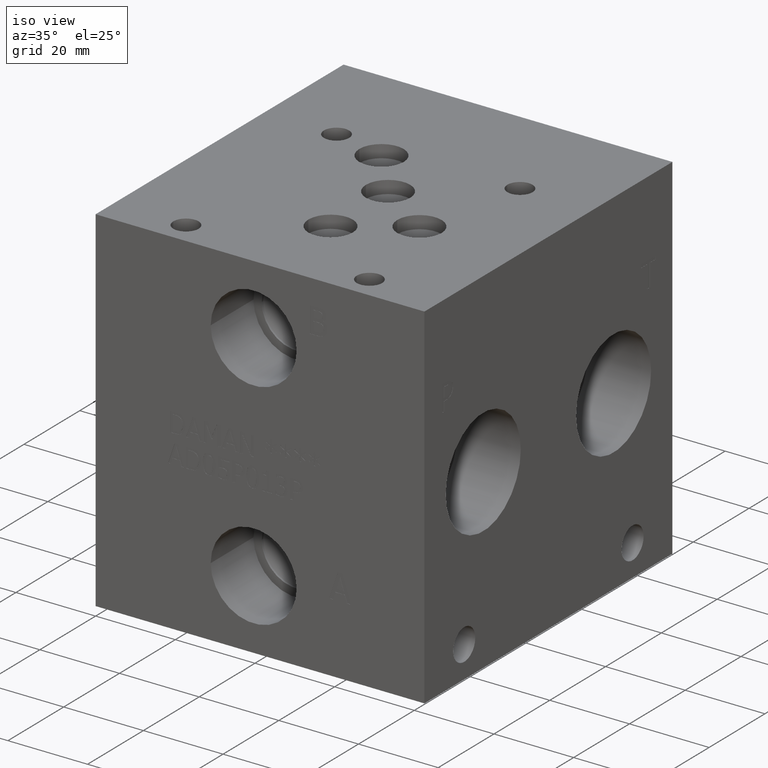
[diagram: clean part render]
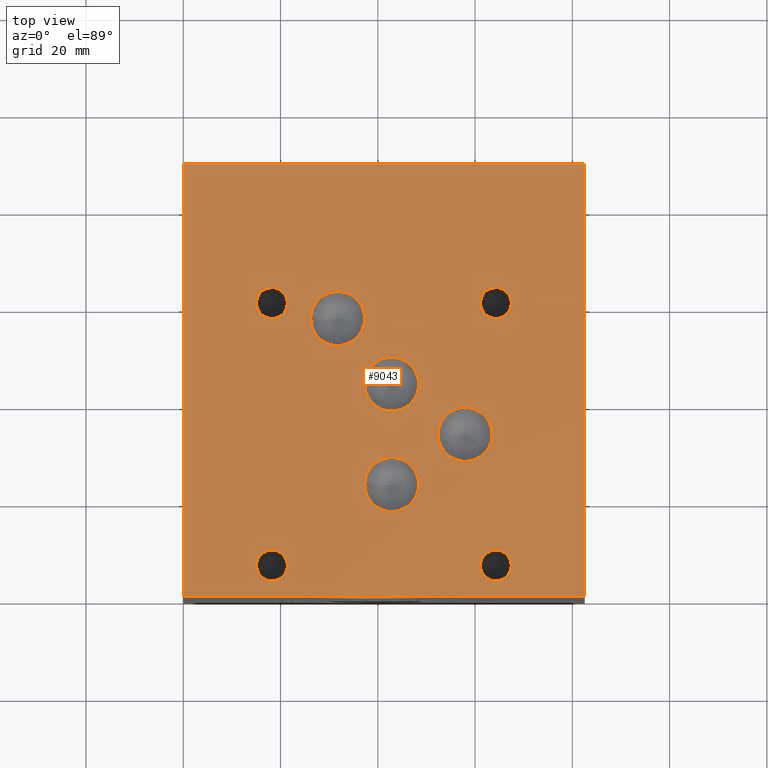
[diagram: tour spotlight — one face highlighted and labeled with its STEP entity id]
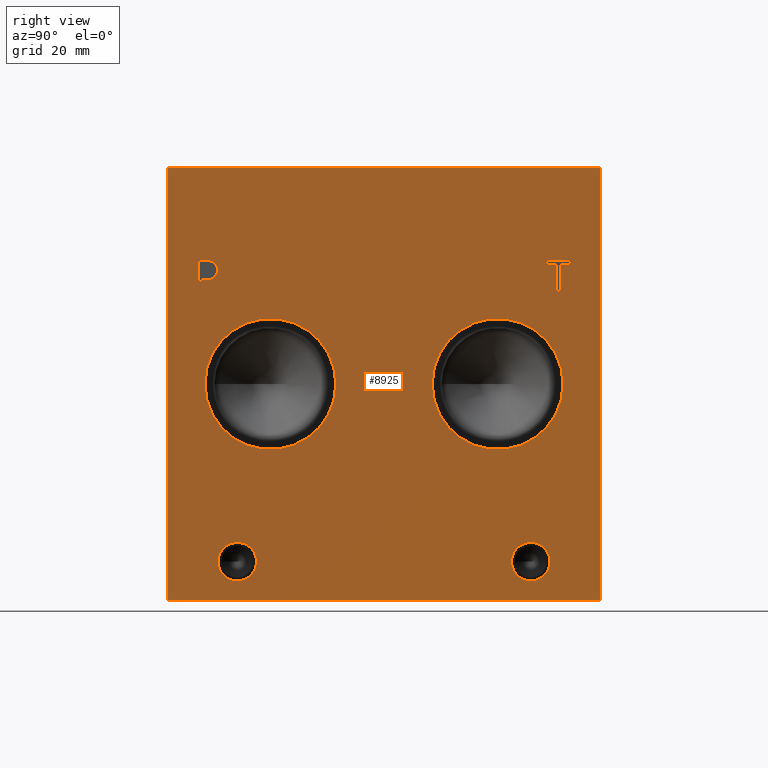
[diagram: tour spotlight — one face highlighted and labeled with its STEP entity id]
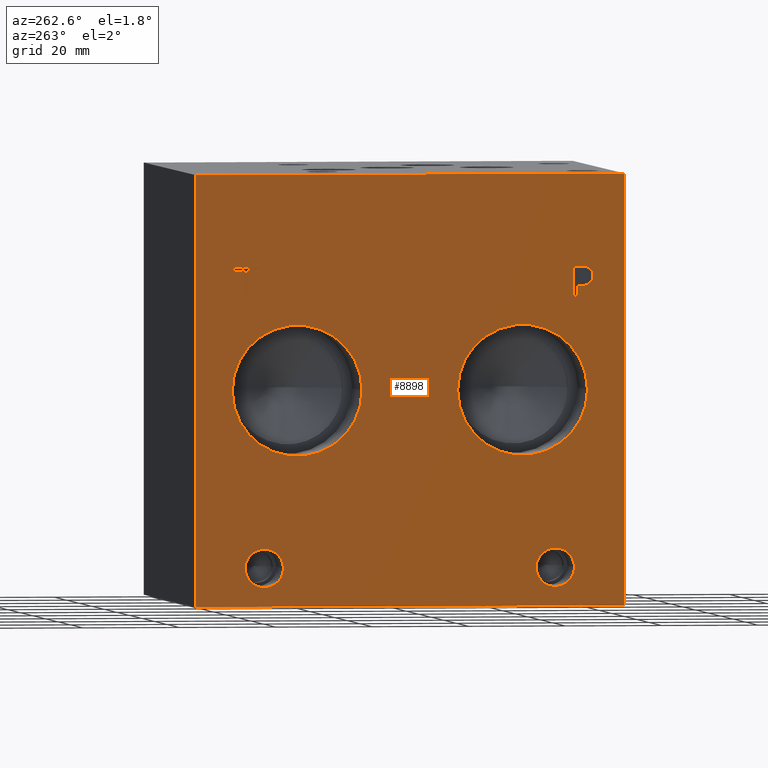
[diagram: tour spotlight — one face highlighted and labeled with its STEP entity id]
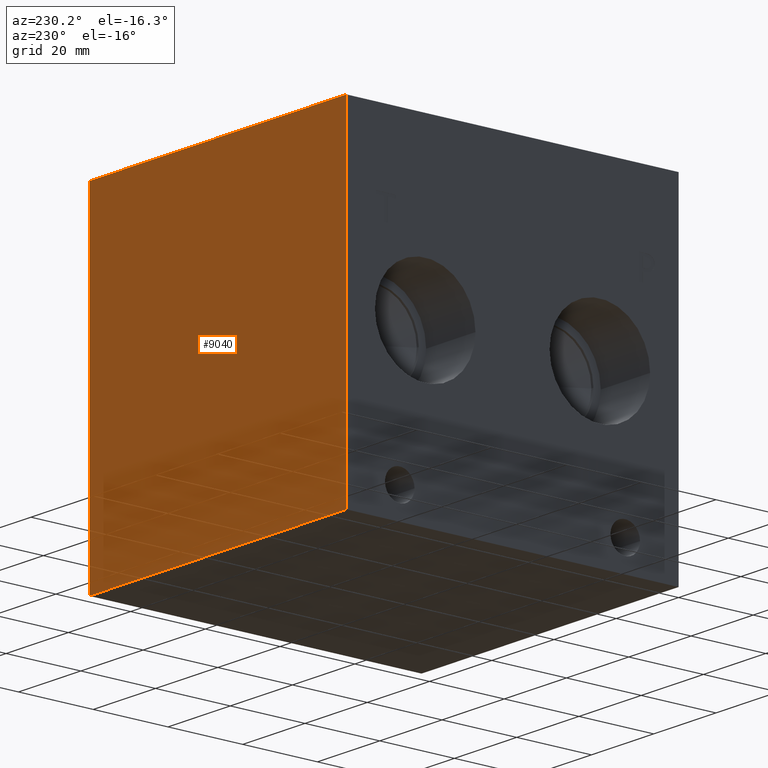
[diagram: tour spotlight — one face highlighted and labeled with its STEP entity id]
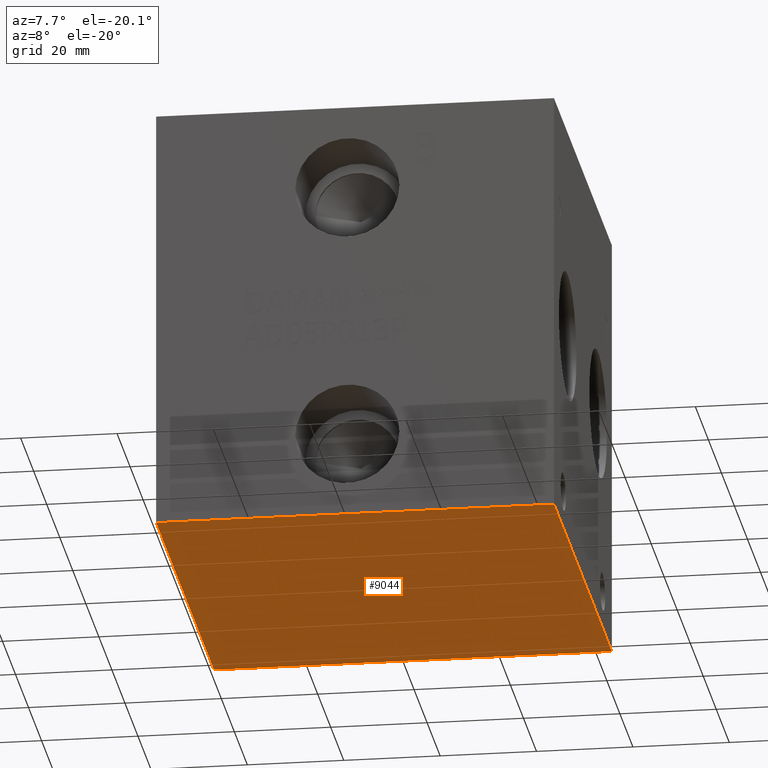
[diagram: tour spotlight — one face highlighted and labeled with its STEP entity id]
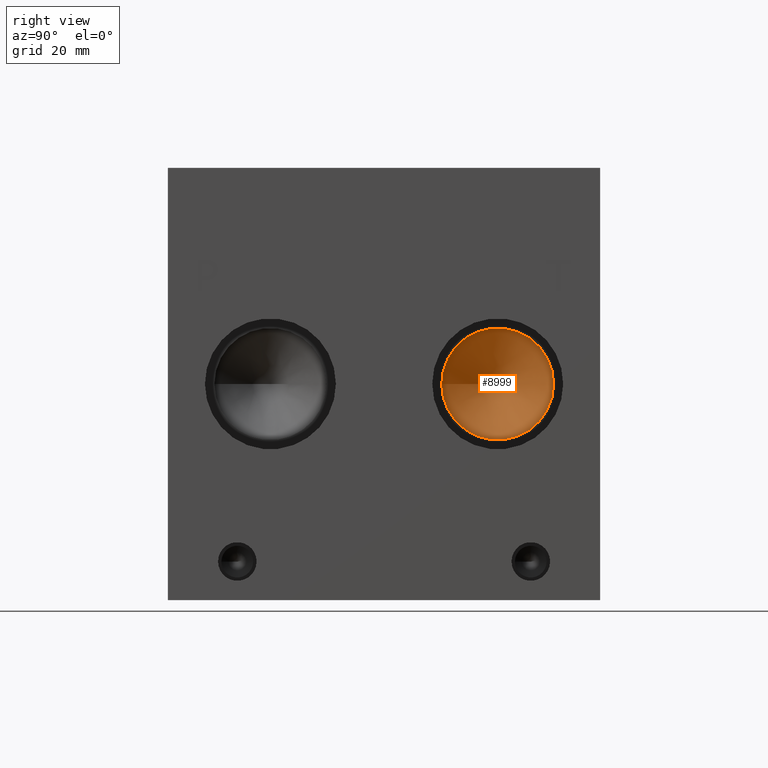
[diagram: tour spotlight — one face highlighted and labeled with its STEP entity id]
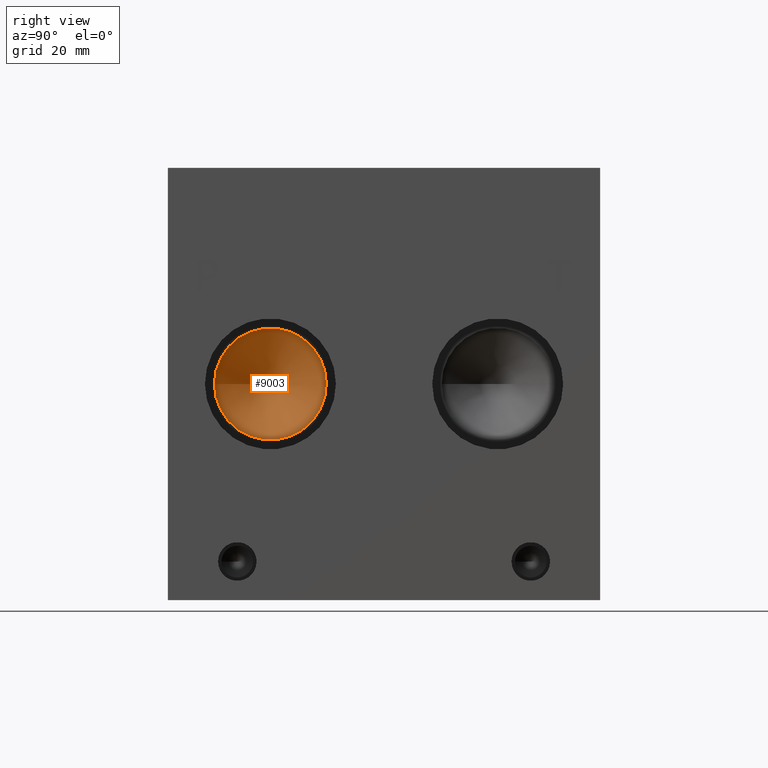
[diagram: tour spotlight — one face highlighted and labeled with its STEP entity id]
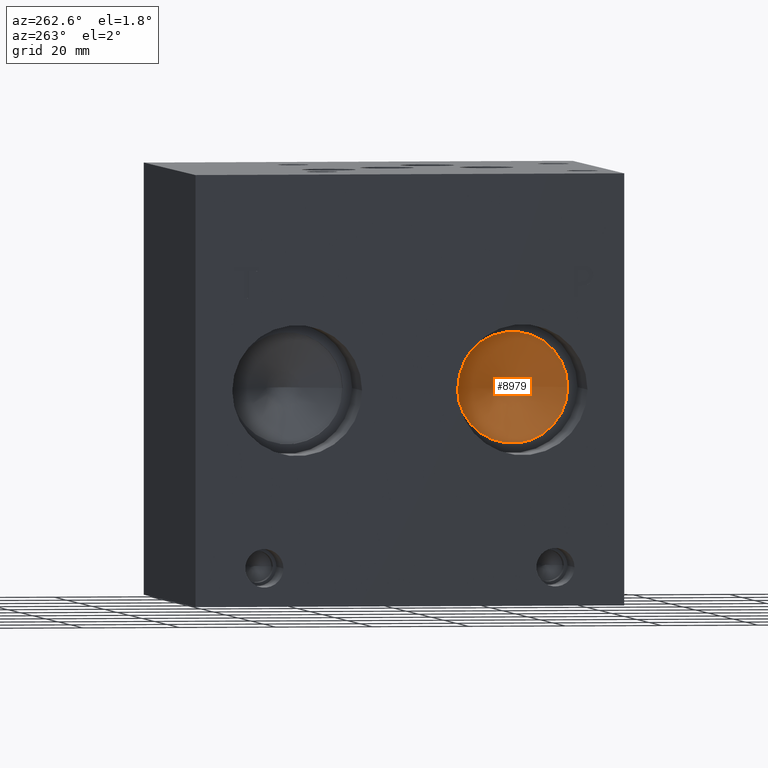
[diagram: tour spotlight — one face highlighted and labeled with its STEP entity id]
A machine part: a face-by-face anatomy tour. The part has 461 B-rep faces; the first image is the clean iso view, then the 8 largest visible faces are spotlighted one at a time (largest first), each with its STEP entity span.

Face 1 — top view, entity #9043. In plain terms, the highlighted planar face has unit normal (0, 0, 1).
Definition (entity closure, byte-faithful):
#136=CIRCLE('',#9445,5.55625);
#137=CIRCLE('',#9446,5.55625);
#140=CIRCLE('',#9451,5.5626);
#141=CIRCLE('',#9452,5.5626);
#144=CIRCLE('',#9457,5.5626);
#145=CIRCLE('',#9458,5.5626);
#148=CIRCLE('',#9463,5.5626);
#149=CIRCLE('',#9464,5.5626);
#155=CIRCLE('',#9473,3.175);
#156=CIRCLE('',#9474,3.175);
#162=CIRCLE('',#9484,3.175);
#163=CIRCLE('',#9485,3.175);
#169=CIRCLE('',#9495,3.175);
#170=CIRCLE('',#9496,3.175);
#176=CIRCLE('',#9506,3.175);
#177=CIRCLE('',#9507,3.175);
#240=FACE_BOUND('',#1523,.T.);
#241=FACE_BOUND('',#1524,.T.);
#242=FACE_BOUND('',#1525,.T.);
#243=FACE_BOUND('',#1526,.T.);
#244=FACE_BOUND('',#1527,.T.);
#245=FACE_BOUND('',#1528,.T.);
#246=FACE_BOUND('',#1529,.T.);
#247=FACE_BOUND('',#1530,.T.);
#538=PLANE('',#9513);
#999=FACE_OUTER_BOUND('',#1522,.T.);
#1522=EDGE_LOOP('',(#8063,#8064,#8065,#8066));
#1523=EDGE_LOOP('',(#8067,#8068));
#1524=EDGE_LOOP('',(#8069,#8070));
#1525=EDGE_LOOP('',(#8071,#8072));
#1526=EDGE_LOOP('',(#8073,#8074));
#1527=EDGE_LOOP('',(#8075,#8076));
#1528=EDGE_LOOP('',(#8077,#8078));
#1529=EDGE_LOOP('',(#8079,#8080));
#1530=EDGE_LOOP('',(#8081,#8082));
#1789=LINE('',#13216,#2672);
#2213=LINE('',#14392,#3096);
#2273=LINE('',#14665,#3156);
#2414=LINE('',#15397,#3297);
#2672=VECTOR('',#9910,10.);
#3096=VECTOR('',#10642,10.);
#3156=VECTOR('',#10756,10.);
#3297=VECTOR('',#11303,10.);
#3816=VERTEX_POINT('',#13213);
#3817=VERTEX_POINT('',#13215);
#4135=VERTEX_POINT('',#14391);
#4193=VERTEX_POINT('',#14663);
#4333=VERTEX_POINT('',#15262);
#4334=VERTEX_POINT('',#15263);
#4338=VERTEX_POINT('',#15275);
#4339=VERTEX_POINT('',#15276);
#4343=VERTEX_POINT('',#15288);
#4344=VERTEX_POINT('',#15289);
#4348=VERTEX_POINT('',#15301);
#4349=VERTEX_POINT('',#15302);
#4356=VERTEX_POINT('',#15321);
#4357=VERTEX_POINT('',#15322);
#4364=VERTEX_POINT('',#15343);
#4365=VERTEX_POINT('',#15344);
#4372=VERTEX_POINT('',#15365);
#4373=VERTEX_POINT('',#15366);
#4380=VERTEX_POINT('',#15387);
#4381=VERTEX_POINT('',#15388);
#4801=EDGE_CURVE('',#3817,#3816,#1789,.T.);
#5267=EDGE_CURVE('',#4135,#3817,#2213,.T.);
#5351=EDGE_CURVE('',#3816,#4193,#2273,.T.);
#5554=EDGE_CURVE('',#4333,#4334,#136,.T.);
#5555=EDGE_CURVE('',#4334,#4333,#137,.T.);
#5560=EDGE_CURVE('',#4338,#4339,#140,.T.);
#5561=EDGE_CURVE('',#4339,#4338,#141,.T.);
#5566=EDGE_CURVE('',#4343,#4344,#144,.T.);
#5567=EDGE_CURVE('',#4344,#4343,#145,.T.);
#5572=EDGE_CURVE('',#4348,#4349,#148,.T.);
#5573=EDGE_CURVE('',#4349,#4348,#149,.T.);
#5581=EDGE_CURVE('',#4356,#4357,#155,.T.);
#5582=EDGE_CURVE('',#4357,#4356,#156,.T.);
#5591=EDGE_CURVE('',#4364,#4365,#162,.T.);
#5592=EDGE_CURVE('',#4365,#4364,#163,.T.);
#5601=EDGE_CURVE('',#4372,#4373,#169,.T.);
#5602=EDGE_CURVE('',#4373,#4372,#170,.T.);
#5611=EDGE_CURVE('',#4380,#4381,#176,.T.);
#5612=EDGE_CURVE('',#4381,#4380,#177,.T.);
#5616=EDGE_CURVE('',#4193,#4135,#2414,.T.);
#8063=ORIENTED_EDGE('',*,*,#4801,.T.);
#8064=ORIENTED_EDGE('',*,*,#5351,.T.);
#8065=ORIENTED_EDGE('',*,*,#5616,.T.);
#8066=ORIENTED_EDGE('',*,*,#5267,.T.);
#8067=ORIENTED_EDGE('',*,*,#5554,.T.);
#8068=ORIENTED_EDGE('',*,*,#5555,.T.);
#8069=ORIENTED_EDGE('',*,*,#5560,.T.);
#8070=ORIENTED_EDGE('',*,*,#5561,.T.);
#8071=ORIENTED_EDGE('',*,*,#5566,.T.);
#8072=ORIENTED_EDGE('',*,*,#5567,.T.);
#8073=ORIENTED_EDGE('',*,*,#5572,.T.);
#8074=ORIENTED_EDGE('',*,*,#5573,.T.);
#8075=ORIENTED_EDGE('',*,*,#5581,.T.);
#8076=ORIENTED_EDGE('',*,*,#5582,.T.);
#8077=ORIENTED_EDGE('',*,*,#5591,.T.);
#8078=ORIENTED_EDGE('',*,*,#5592,.T.);
#8079=ORIENTED_EDGE('',*,*,#5601,.T.);
#8080=ORIENTED_EDGE('',*,*,#5602,.T.);
#8081=ORIENTED_EDGE('',*,*,#5611,.T.);
#8082=ORIENTED_EDGE('',*,*,#5612,.T.);
#9043=ADVANCED_FACE('',(#999,#240,#241,#242,#243,#244,#245,#246,#247),#538,
 .T.);
#9445=AXIS2_PLACEMENT_3D('',#15264,#11151,#11152);
#9446=AXIS2_PLACEMENT_3D('',#15265,#11153,#11154);
#9451=AXIS2_PLACEMENT_3D('',#15277,#11165,#11166);
#9452=AXIS2_PLACEMENT_3D('',#15278,#11167,#11168);
#9457=AXIS2_PLACEMENT_3D('',#15290,#11179,#11180);
#9458=AXIS2_PLACEMENT_3D('',#15291,#11181,#11182);
#9463=AXIS2_PLACEMENT_3D('',#15303,#11193,#11194);
#9464=AXIS2_PLACEMENT_3D('',#15304,#11195,#11196);
#9473=AXIS2_PLACEMENT_3D('',#15323,#11215,#11216);
#9474=AXIS2_PLACEMENT_3D('',#15324,#11217,#11218);
#9484=AXIS2_PLACEMENT_3D('',#15345,#11240,#11241);
#9485=AXIS2_PLACEMENT_3D('',#15346,#11242,#11243);
#9495=AXIS2_PLACEMENT_3D('',#15367,#11265,#11266);
#9496=AXIS2_PLACEMENT_3D('',#15368,#11267,#11268);
#9506=AXIS2_PLACEMENT_3D('',#15389,#11290,#11291);
#9507=AXIS2_PLACEMENT_3D('',#15390,#11292,#11293);
#9513=AXIS2_PLACEMENT_3D('',#15400,#11308,#11309);
#9910=DIRECTION('',(1.,0.,0.));
#10642=DIRECTION('',(0.,-1.,0.));
#10756=DIRECTION('',(0.,1.,0.));
#11151=DIRECTION('center_axis',(0.,0.,-1.));
#11152=DIRECTION('ref_axis',(1.,0.,0.));
#11153=DIRECTION('center_axis',(0.,0.,-1.));
#11154=DIRECTION('ref_axis',(1.,0.,0.));
#11165=DIRECTION('center_axis',(0.,0.,-1.));
#11166=DIRECTION('ref_axis',(1.,0.,0.));
#11167=DIRECTION('center_axis',(0.,0.,-1.));
#11168=DIRECTION('ref_axis',(1.,0.,0.));
#11179=DIRECTION('center_axis',(0.,0.,-1.));
#11180=DIRECTION('ref_axis',(1.,0.,0.));
#11181=DIRECTION('center_axis',(0.,0.,-1.));
#11182=DIRECTION('ref_axis',(1.,0.,0.));
#11193=DIRECTION('center_axis',(0.,0.,-1.));
#11194=DIRECTION('ref_axis',(1.,0.,0.));
#11195=DIRECTION('center_axis',(0.,0.,-1.));
#11196=DIRECTION('ref_axis',(1.,0.,0.));
#11215=DIRECTION('center_axis',(0.,0.,-1.));
#11216=DIRECTION('ref_axis',(1.,0.,0.));
#11217=DIRECTION('center_axis',(0.,0.,-1.));
#11218=DIRECTION('ref_axis',(1.,0.,0.));
#11240=DIRECTION('center_axis',(0.,0.,-1.));
#11241=DIRECTION('ref_axis',(1.,0.,0.));
#11242=DIRECTION('center_axis',(0.,0.,-1.));
#11243=DIRECTION('ref_axis',(1.,0.,0.));
#11265=DIRECTION('center_axis',(0.,0.,-1.));
#11266=DIRECTION('ref_axis',(1.,0.,0.));
#11267=DIRECTION('center_axis',(0.,0.,-1.));
#11268=DIRECTION('ref_axis',(1.,0.,0.));
#11290=DIRECTION('center_axis',(0.,0.,-1.));
#11291=DIRECTION('ref_axis',(1.,0.,0.));
#11292=DIRECTION('center_axis',(0.,0.,-1.));
#11293=DIRECTION('ref_axis',(1.,0.,0.));
#11303=DIRECTION('',(-1.,0.,0.));
#11308=DIRECTION('center_axis',(0.,0.,1.));
#11309=DIRECTION('ref_axis',(1.,0.,0.));
#13213=CARTESIAN_POINT('',(82.55,0.,88.9));
#13215=CARTESIAN_POINT('',(0.,0.,88.9));
#13216=CARTESIAN_POINT('',(0.,0.,88.9));
#14391=CARTESIAN_POINT('',(0.,88.9,88.9));
#14392=CARTESIAN_POINT('',(0.,88.9,88.9));
#14663=CARTESIAN_POINT('',(82.55,88.9,88.9));
#14665=CARTESIAN_POINT('',(82.55,0.,88.9));
#15262=CARTESIAN_POINT('',(48.41875,43.64228,88.9));
#15263=CARTESIAN_POINT('',(37.30625,43.64228,88.9));
#15264=CARTESIAN_POINT('Origin',(42.8625,43.64228,88.9));
#15265=CARTESIAN_POINT('Origin',(42.8625,43.64228,88.9));
#15275=CARTESIAN_POINT('',(37.3126,57.15,88.9));
#15276=CARTESIAN_POINT('',(26.1874,57.15,88.9));
#15277=CARTESIAN_POINT('Origin',(31.75,57.15,88.9));
#15278=CARTESIAN_POINT('Origin',(31.75,57.15,88.9));
#15288=CARTESIAN_POINT('',(63.5254,33.3248,88.9));
#15289=CARTESIAN_POINT('',(52.4002,33.3248,88.9));
#15290=CARTESIAN_POINT('Origin',(57.9628,33.3248,88.9));
#15291=CARTESIAN_POINT('Origin',(57.9628,33.3248,88.9));
#15301=CARTESIAN_POINT('',(48.43018,23.00732,88.9));
#15302=CARTESIAN_POINT('',(37.30498,23.00732,88.9));
#15303=CARTESIAN_POINT('Origin',(42.86758,23.00732,88.9));
#15304=CARTESIAN_POINT('Origin',(42.86758,23.00732,88.9));
#15321=CARTESIAN_POINT('',(67.4624,6.3627,88.9));
#15322=CARTESIAN_POINT('',(61.1124,6.3627,88.9));
#15323=CARTESIAN_POINT('Origin',(64.2874,6.3627,88.9));
#15324=CARTESIAN_POINT('Origin',(64.2874,6.3627,88.9));
#15343=CARTESIAN_POINT('',(21.4122,60.325,88.9));
#15344=CARTESIAN_POINT('',(15.0622,60.325,88.9));
#15345=CARTESIAN_POINT('Origin',(18.2372,60.325,88.9));
#15346=CARTESIAN_POINT('Origin',(18.2372,60.325,88.9));
#15365=CARTESIAN_POINT('',(67.4624,60.325,88.9));
#15366=CARTESIAN_POINT('',(61.1124,60.325,88.9));
#15367=CARTESIAN_POINT('Origin',(64.2874,60.325,88.9));
#15368=CARTESIAN_POINT('Origin',(64.2874,60.325,88.9));
#15387=CARTESIAN_POINT('',(21.4122,6.35,88.9));
#15388=CARTESIAN_POINT('',(15.0622,6.35,88.9));
#15389=CARTESIAN_POINT('Origin',(18.2372,6.35,88.9));
#15390=CARTESIAN_POINT('Origin',(18.2372,6.35,88.9));
#15397=CARTESIAN_POINT('',(82.55,88.9,88.9));
#15400=CARTESIAN_POINT('Origin',(41.275,44.45,88.9));

Face 2 — right view, entity #8925. In plain terms, the highlighted planar face has unit normal (1, 0, 0).
Definition (entity closure, byte-faithful):
#76=CIRCLE('',#9308,13.462);
#77=CIRCLE('',#9309,13.462);
#78=CIRCLE('',#9310,13.462);
#79=CIRCLE('',#9311,13.462);
#80=CIRCLE('',#9312,3.9624);
#81=CIRCLE('',#9313,3.9624);
#82=CIRCLE('',#9314,3.9624);
#83=CIRCLE('',#9315,3.9624);
#217=FACE_BOUND('',#1382,.T.);
#218=FACE_BOUND('',#1383,.T.);
#219=FACE_BOUND('',#1384,.T.);
#220=FACE_BOUND('',#1385,.T.);
#221=FACE_BOUND('',#1386,.T.);
#222=FACE_BOUND('',#1387,.T.);
#484=PLANE('',#9307);
#881=FACE_OUTER_BOUND('',#1381,.T.);
#1381=EDGE_LOOP('',(#7489,#7490,#7491,#7492));
#1382=EDGE_LOOP('',(#7493,#7494));
#1383=EDGE_LOOP('',(#7495,#7496));
#1384=EDGE_LOOP('',(#7497,#7498));
#1385=EDGE_LOOP('',(#7499,#7500));
#1386=EDGE_LOOP('',(#7501,#7502,#7503,#7504,#7505,#7506,#7507,#7508));
#1387=EDGE_LOOP('',(#7509,#7510,#7511,#7512,#7513,#7514,#7515,#7516,#7517));
#1788=LINE('',#13214,#2671);
#2255=LINE('',#14596,#3138);
#2258=LINE('',#14602,#3141);
#2261=LINE('',#14608,#3144);
#2264=LINE('',#14614,#3147);
#2267=LINE('',#14620,#3150);
#2271=LINE('',#14662,#3154);
#2272=LINE('',#14664,#3155);
#2273=LINE('',#14665,#3156);
#2274=LINE('',#14684,#3157);
#2275=LINE('',#14686,#3158);
#2276=LINE('',#14688,#3159);
#2277=LINE('',#14690,#3160);
#2278=LINE('',#14692,#3161);
#2279=LINE('',#14694,#3162);
#2280=LINE('',#14696,#3163);
#2281=LINE('',#14697,#3164);
#2671=VECTOR('',#9909,10.);
#3138=VECTOR('',#10726,10.);
#3141=VECTOR('',#10731,10.);
#3144=VECTOR('',#10736,10.);
#3147=VECTOR('',#10741,10.);
#3150=VECTOR('',#10746,10.);
#3154=VECTOR('',#10754,10.);
#3155=VECTOR('',#10755,10.);
#3156=VECTOR('',#10756,10.);
#3157=VECTOR('',#10773,10.);
#3158=VECTOR('',#10774,10.);
#3159=VECTOR('',#10775,10.);
#3160=VECTOR('',#10776,10.);
#3161=VECTOR('',#10777,10.);
#3162=VECTOR('',#10778,10.);
#3163=VECTOR('',#10779,10.);
#3164=VECTOR('',#10780,10.);
#3506=B_SPLINE_CURVE_WITH_KNOTS('',2,(#14563,#14564,#14565,#14566),
 .UNSPECIFIED.,.F.,.F.,(3,1,3),(0.,1.,2.),.UNSPECIFIED.);
#3508=B_SPLINE_CURVE_WITH_KNOTS('',2,(#14584,#14585,#14586,#14587),
 .UNSPECIFIED.,.F.,.F.,(3,1,3),(0.,1.,2.),.UNSPECIFIED.);
#3510=B_SPLINE_CURVE_WITH_KNOTS('',2,(#14633,#14634,#14635,#14636),
 .UNSPECIFIED.,.F.,.F.,(3,1,3),(0.,1.,2.),.UNSPECIFIED.);
#3512=B_SPLINE_CURVE_WITH_KNOTS('',2,(#14651,#14652,#14653,#14654),
 .UNSPECIFIED.,.F.,.F.,(3,1,3),(0.,1.,2.),.UNSPECIFIED.);
#3815=VERTEX_POINT('',#13211);
#3816=VERTEX_POINT('',#13213);
#4174=VERTEX_POINT('',#14561);
#4175=VERTEX_POINT('',#14562);
#4178=VERTEX_POINT('',#14583);
#4180=VERTEX_POINT('',#14595);
#4182=VERTEX_POINT('',#14601);
#4184=VERTEX_POINT('',#14607);
#4186=VERTEX_POINT('',#14613);
#4188=VERTEX_POINT('',#14619);
#4190=VERTEX_POINT('',#14632);
#4192=VERTEX_POINT('',#14661);
#4193=VERTEX_POINT('',#14663);
#4194=VERTEX_POINT('',#14666);
#4195=VERTEX_POINT('',#14667);
#4196=VERTEX_POINT('',#14670);
#4197=VERTEX_POINT('',#14671);
#4198=VERTEX_POINT('',#14674);
#4199=VERTEX_POINT('',#14675);
#4200=VERTEX_POINT('',#14678);
#4201=VERTEX_POINT('',#14679);
#4202=VERTEX_POINT('',#14682);
#4203=VERTEX_POINT('',#14683);
#4204=VERTEX_POINT('',#14685);
#4205=VERTEX_POINT('',#14687);
#4206=VERTEX_POINT('',#14689);
#4207=VERTEX_POINT('',#14691);
#4208=VERTEX_POINT('',#14693);
#4209=VERTEX_POINT('',#14695);
#4800=EDGE_CURVE('',#3815,#3816,#1788,.T.);
#5322=EDGE_CURVE('',#4174,#4175,#3506,.T.);
#5326=EDGE_CURVE('',#4178,#4174,#3508,.T.);
#5329=EDGE_CURVE('',#4180,#4178,#2255,.T.);
#5332=EDGE_CURVE('',#4182,#4180,#2258,.T.);
#5335=EDGE_CURVE('',#4184,#4182,#2261,.T.);
#5338=EDGE_CURVE('',#4186,#4184,#2264,.T.);
#5341=EDGE_CURVE('',#4188,#4186,#2267,.T.);
#5344=EDGE_CURVE('',#4190,#4188,#3510,.T.);
#5347=EDGE_CURVE('',#4175,#4190,#3512,.T.);
#5349=EDGE_CURVE('',#3815,#4192,#2271,.T.);
#5350=EDGE_CURVE('',#4192,#4193,#2272,.T.);
#5351=EDGE_CURVE('',#3816,#4193,#2273,.T.);
#5352=EDGE_CURVE('',#4194,#4195,#76,.T.);
#5353=EDGE_CURVE('',#4195,#4194,#77,.T.);
#5354=EDGE_CURVE('',#4196,#4197,#78,.T.);
#5355=EDGE_CURVE('',#4197,#4196,#79,.T.);
#5356=EDGE_CURVE('',#4198,#4199,#80,.T.);
#5357=EDGE_CURVE('',#4199,#4198,#81,.T.);
#5358=EDGE_CURVE('',#4200,#4201,#82,.T.);
#5359=EDGE_CURVE('',#4201,#4200,#83,.T.);
#5360=EDGE_CURVE('',#4202,#4203,#2274,.T.);
#5361=EDGE_CURVE('',#4203,#4204,#2275,.T.);
#5362=EDGE_CURVE('',#4204,#4205,#2276,.T.);
#5363=EDGE_CURVE('',#4205,#4206,#2277,.T.);
#5364=EDGE_CURVE('',#4206,#4207,#2278,.T.);
#5365=EDGE_CURVE('',#4207,#4208,#2279,.T.);
#5366=EDGE_CURVE('',#4208,#4209,#2280,.T.);
#5367=EDGE_CURVE('',#4209,#4202,#2281,.T.);
#7489=ORIENTED_EDGE('',*,*,#5349,.T.);
#7490=ORIENTED_EDGE('',*,*,#5350,.T.);
#7491=ORIENTED_EDGE('',*,*,#5351,.F.);
#7492=ORIENTED_EDGE('',*,*,#4800,.F.);
#7493=ORIENTED_EDGE('',*,*,#5352,.T.);
#7494=ORIENTED_EDGE('',*,*,#5353,.T.);
#7495=ORIENTED_EDGE('',*,*,#5354,.T.);
#7496=ORIENTED_EDGE('',*,*,#5355,.T.);
#7497=ORIENTED_EDGE('',*,*,#5356,.T.);
#7498=ORIENTED_EDGE('',*,*,#5357,.T.);
#7499=ORIENTED_EDGE('',*,*,#5358,.T.);
#7500=ORIENTED_EDGE('',*,*,#5359,.T.);
#7501=ORIENTED_EDGE('',*,*,#5360,.T.);
#7502=ORIENTED_EDGE('',*,*,#5361,.T.);
#7503=ORIENTED_EDGE('',*,*,#5362,.T.);
#7504=ORIENTED_EDGE('',*,*,#5363,.T.);
#7505=ORIENTED_EDGE('',*,*,#5364,.T.);
#7506=ORIENTED_EDGE('',*,*,#5365,.T.);
#7507=ORIENTED_EDGE('',*,*,#5366,.T.);
#7508=ORIENTED_EDGE('',*,*,#5367,.T.);
#7509=ORIENTED_EDGE('',*,*,#5322,.T.);
#7510=ORIENTED_EDGE('',*,*,#5347,.T.);
#7511=ORIENTED_EDGE('',*,*,#5344,.T.);
#7512=ORIENTED_EDGE('',*,*,#5341,.T.);
#7513=ORIENTED_EDGE('',*,*,#5338,.T.);
#7514=ORIENTED_EDGE('',*,*,#5335,.T.);
#7515=ORIENTED_EDGE('',*,*,#5332,.T.);
#7516=ORIENTED_EDGE('',*,*,#5329,.T.);
#7517=ORIENTED_EDGE('',*,*,#5326,.T.);
#8925=ADVANCED_FACE('',(#881,#217,#218,#219,#220,#221,#222),#484,.T.);
#9307=AXIS2_PLACEMENT_3D('',#14660,#10752,#10753);
#9308=AXIS2_PLACEMENT_3D('',#14668,#10757,#10758);
#9309=AXIS2_PLACEMENT_3D('',#14669,#10759,#10760);
#9310=AXIS2_PLACEMENT_3D('',#14672,#10761,#10762);
#9311=AXIS2_PLACEMENT_3D('',#14673,#10763,#10764);
#9312=AXIS2_PLACEMENT_3D('',#14676,#10765,#10766);
#9313=AXIS2_PLACEMENT_3D('',#14677,#10767,#10768);
#9314=AXIS2_PLACEMENT_3D('',#14680,#10769,#10770);
#9315=AXIS2_PLACEMENT_3D('',#14681,#10771,#10772);
#9909=DIRECTION('',(0.,0.,1.));
#10726=DIRECTION('',(0.,1.,0.));
#10731=DIRECTION('',(0.,0.,1.));
#10736=DIRECTION('',(0.,-1.,0.));
#10741=DIRECTION('',(0.,0.,-1.));
#10746=DIRECTION('',(0.,-1.,0.));
#10752=DIRECTION('center_axis',(1.,0.,0.));
#10753=DIRECTION('ref_axis',(0.,1.,0.));
#10754=DIRECTION('',(0.,1.,0.));
#10755=DIRECTION('',(0.,0.,1.));
#10756=DIRECTION('',(0.,1.,0.));
#10757=DIRECTION('center_axis',(-1.,0.,0.));
#10758=DIRECTION('ref_axis',(0.,1.,0.));
#10759=DIRECTION('center_axis',(-1.,0.,0.));
#10760=DIRECTION('ref_axis',(0.,1.,0.));
#10761=DIRECTION('center_axis',(-1.,0.,0.));
#10762=DIRECTION('ref_axis',(0.,1.,0.));
#10763=DIRECTION('center_axis',(-1.,0.,0.));
#10764=DIRECTION('ref_axis',(0.,1.,0.));
#10765=DIRECTION('center_axis',(-1.,0.,0.));
#10766=DIRECTION('ref_axis',(0.,1.,0.));
#10767=DIRECTION('center_axis',(-1.,0.,0.));
#10768=DIRECTION('ref_axis',(0.,1.,0.));
#10769=DIRECTION('center_axis',(-1.,0.,0.));
#10770=DIRECTION('ref_axis',(0.,1.,0.));
#10771=DIRECTION('center_axis',(-1.,0.,0.));
#10772=DIRECTION('ref_axis',(0.,1.,0.));
#10773=DIRECTION('',(0.,-1.,0.));
#10774=DIRECTION('',(0.,0.,1.));
#10775=DIRECTION('',(0.,-1.,0.));
#10776=DIRECTION('',(0.,0.,1.));
#10777=DIRECTION('',(0.,1.,0.));
#10778=DIRECTION('',(0.,0.,-1.));
#10779=DIRECTION('',(0.,-1.,0.));
#10780=DIRECTION('',(0.,0.,-1.));
#13211=CARTESIAN_POINT('',(82.55,0.,0.));
#13213=CARTESIAN_POINT('',(82.55,0.,88.9));
#13214=CARTESIAN_POINT('',(82.55,0.,0.));
#14561=CARTESIAN_POINT('',(82.55,9.45681720235939,69.4537681439707));
#14562=CARTESIAN_POINT('',(82.55,10.213259654532,67.935737372604));
#14563=CARTESIAN_POINT('Ctrl Pts',(82.55,9.45681720235939,69.4537681439707));
#14564=CARTESIAN_POINT('Ctrl Pts',(82.55,9.81188202684857,69.2119123939564));
#14565=CARTESIAN_POINT('Ctrl Pts',(82.55,10.213259654532,68.4657616758269));
#14566=CARTESIAN_POINT('Ctrl Pts',(82.55,10.213259654532,67.935737372604));
#14583=CARTESIAN_POINT('',(82.55,7.7947021543883,69.8499999046326));
#14584=CARTESIAN_POINT('Ctrl Pts',(82.55,7.7947021543883,69.8499999046326));
#14585=CARTESIAN_POINT('Ctrl Pts',(82.55,8.36074752676236,69.8499999046326));
#14586=CARTESIAN_POINT('Ctrl Pts',(82.55,9.15321104808603,69.6647486918556));
#14587=CARTESIAN_POINT('Ctrl Pts',(82.55,9.45681720235939,69.4537681439707));
#14595=CARTESIAN_POINT('',(82.55,6.19948337769779,69.8499999046326));
#14596=CARTESIAN_POINT('',(82.55,3.09974168884889,69.8499999046326));
#14601=CARTESIAN_POINT('',(82.55,6.19948337769779,63.5));
#14602=CARTESIAN_POINT('',(82.55,6.19948337769779,31.75));
#14607=CARTESIAN_POINT('',(82.55,7.04340556923729,63.5));
#14608=CARTESIAN_POINT('',(82.55,3.52170278461864,63.5));
#14613=CARTESIAN_POINT('',(82.55,7.04340556923729,65.8670988299279));
#14614=CARTESIAN_POINT('',(82.55,7.04340556923729,32.9335494149639));
#14619=CARTESIAN_POINT('',(82.55,7.75868108523723,65.8670988299279));
#14620=CARTESIAN_POINT('',(82.55,3.87934054261861,65.8670988299279));
#14632=CARTESIAN_POINT('',(82.55,9.6575060162011,66.5257698086904));
#14633=CARTESIAN_POINT('Ctrl Pts',(82.55,9.6575060162011,66.5257698086904));
#14634=CARTESIAN_POINT('Ctrl Pts',(82.55,9.32817052681983,66.2015801863307));
#14635=CARTESIAN_POINT('Ctrl Pts',(82.55,8.43793553208609,65.8670988299279));
#14636=CARTESIAN_POINT('Ctrl Pts',(82.55,7.75868108523723,65.8670988299279));
#14651=CARTESIAN_POINT('Ctrl Pts',(82.55,10.213259654532,67.935737372604));
#14652=CARTESIAN_POINT('Ctrl Pts',(82.55,10.213259654532,67.5240680108774));
#14653=CARTESIAN_POINT('Ctrl Pts',(82.55,9.9199452343018,66.7830631597695));
#14654=CARTESIAN_POINT('Ctrl Pts',(82.55,9.6575060162011,66.5257698086904));
#14660=CARTESIAN_POINT('Origin',(82.55,0.,0.));
#14661=CARTESIAN_POINT('',(82.55,88.9,0.));
#14662=CARTESIAN_POINT('',(82.55,0.,0.));
#14663=CARTESIAN_POINT('',(82.55,88.9,88.9));
#14664=CARTESIAN_POINT('',(82.55,88.9,0.));
#14665=CARTESIAN_POINT('',(82.55,0.,88.9));
#14666=CARTESIAN_POINT('',(82.55,34.544,44.45));
#14667=CARTESIAN_POINT('',(82.55,7.62,44.45));
#14668=CARTESIAN_POINT('Origin',(82.55,21.082,44.45));
#14669=CARTESIAN_POINT('Origin',(82.55,21.082,44.45));
#14670=CARTESIAN_POINT('',(82.55,81.28,44.45));
#14671=CARTESIAN_POINT('',(82.55,54.356,44.45));
#14672=CARTESIAN_POINT('Origin',(82.55,67.818,44.45));
#14673=CARTESIAN_POINT('Origin',(82.55,67.818,44.45));
#14674=CARTESIAN_POINT('',(82.55,78.5876,7.9248));
#14675=CARTESIAN_POINT('',(82.55,70.6628,7.9248));
#14676=CARTESIAN_POINT('Origin',(82.55,74.6252,7.9248));
#14677=CARTESIAN_POINT('Origin',(82.55,74.6252,7.9248));
#14678=CARTESIAN_POINT('',(82.55,18.2372,7.9248));
#14679=CARTESIAN_POINT('',(82.55,10.3124,7.9248));
#14680=CARTESIAN_POINT('Origin',(82.55,14.2748,7.9248));
#14681=CARTESIAN_POINT('Origin',(82.55,14.2748,7.9248));
#14682=CARTESIAN_POINT('',(82.55,80.756665271453,63.5));
#14683=CARTESIAN_POINT('',(82.55,79.9127430799135,63.5));
#14684=CARTESIAN_POINT('',(82.55,40.3783326357265,63.5));
#14685=CARTESIAN_POINT('',(82.55,79.9127430799135,69.0987033194816));
#14686=CARTESIAN_POINT('',(82.55,79.9127430799135,31.75));
#14687=CARTESIAN_POINT('',(82.55,77.7823541329784,69.0987033194816));
#14688=CARTESIAN_POINT('',(82.55,39.9563715399567,69.0987033194816));
#14689=CARTESIAN_POINT('',(82.55,77.7823541329784,69.8499999046326));
#14690=CARTESIAN_POINT('',(82.55,77.7823541329784,34.5493516597408));
#14691=CARTESIAN_POINT('',(82.55,82.8870542183881,69.8499999046326));
#14692=CARTESIAN_POINT('',(82.55,38.8911770664892,69.8499999046326));
#14693=CARTESIAN_POINT('',(82.55,82.8870542183881,69.0987033194816));
#14694=CARTESIAN_POINT('',(82.55,82.8870542183881,34.9249999523163));
#14695=CARTESIAN_POINT('',(82.55,80.756665271453,69.0987033194816));
#14696=CARTESIAN_POINT('',(82.55,41.443527109194,69.0987033194816));
#14697=CARTESIAN_POINT('',(82.55,80.756665271453,34.5493516597408));

Face 3 — auxiliary view, entity #8898. In plain terms, the highlighted planar face has unit normal (-1, 0, 0).
Definition (entity closure, byte-faithful):
#68=CIRCLE('',#9281,3.9624);
#69=CIRCLE('',#9282,3.9624);
#70=CIRCLE('',#9283,3.9624);
#71=CIRCLE('',#9284,3.9624);
#72=CIRCLE('',#9285,13.462);
#73=CIRCLE('',#9286,13.462);
#74=CIRCLE('',#9287,13.462);
#75=CIRCLE('',#9288,13.462);
#210=FACE_BOUND('',#1348,.T.);
#211=FACE_BOUND('',#1349,.T.);
#212=FACE_BOUND('',#1350,.T.);
#213=FACE_BOUND('',#1351,.T.);
#214=FACE_BOUND('',#1352,.T.);
#215=FACE_BOUND('',#1353,.T.);
#465=PLANE('',#9280);
#854=FACE_OUTER_BOUND('',#1347,.T.);
#1347=EDGE_LOOP('',(#7340,#7341,#7342,#7343));
#1348=EDGE_LOOP('',(#7344,#7345));
#1349=EDGE_LOOP('',(#7346,#7347));
#1350=EDGE_LOOP('',(#7348,#7349));
#1351=EDGE_LOOP('',(#7350,#7351));
#1352=EDGE_LOOP('',(#7352,#7353,#7354,#7355,#7356,#7357,#7358,#7359));
#1353=EDGE_LOOP('',(#7360,#7361,#7362,#7363,#7364,#7365,#7366,#7367,#7368));
#1790=LINE('',#13217,#2673);
#2196=LINE('',#14324,#3079);
#2199=LINE('',#14330,#3082);
#2202=LINE('',#14336,#3085);
#2205=LINE('',#14342,#3088);
#2208=LINE('',#14348,#3091);
#2212=LINE('',#14390,#3095);
#2213=LINE('',#14392,#3096);
#2214=LINE('',#14393,#3097);
#2215=LINE('',#14412,#3098);
#2216=LINE('',#14414,#3099);
#2217=LINE('',#14416,#3100);
#2218=LINE('',#14418,#3101);
#2219=LINE('',#14420,#3102);
#2220=LINE('',#14422,#3103);
#2221=LINE('',#14424,#3104);
#2222=LINE('',#14425,#3105);
#2673=VECTOR('',#9911,10.);
#3079=VECTOR('',#10613,10.);
#3082=VECTOR('',#10618,10.);
#3085=VECTOR('',#10623,10.);
#3088=VECTOR('',#10628,10.);
#3091=VECTOR('',#10633,10.);
#3095=VECTOR('',#10641,10.);
#3096=VECTOR('',#10642,10.);
#3097=VECTOR('',#10643,10.);
#3098=VECTOR('',#10660,10.);
#3099=VECTOR('',#10661,10.);
#3100=VECTOR('',#10662,10.);
#3101=VECTOR('',#10663,10.);
#3102=VECTOR('',#10664,10.);
#3103=VECTOR('',#10665,10.);
#3104=VECTOR('',#10666,10.);
#3105=VECTOR('',#10667,10.);
#3490=B_SPLINE_CURVE_WITH_KNOTS('',2,(#14291,#14292,#14293,#14294),
 .UNSPECIFIED.,.F.,.F.,(3,1,3),(0.,1.,2.),.UNSPECIFIED.);
#3492=B_SPLINE_CURVE_WITH_KNOTS('',2,(#14312,#14313,#14314,#14315),
 .UNSPECIFIED.,.F.,.F.,(3,1,3),(0.,1.,2.),.UNSPECIFIED.);
#3494=B_SPLINE_CURVE_WITH_KNOTS('',2,(#14361,#14362,#14363,#14364),
 .UNSPECIFIED.,.F.,.F.,(3,1,3),(0.,1.,2.),.UNSPECIFIED.);
#3496=B_SPLINE_CURVE_WITH_KNOTS('',2,(#14379,#14380,#14381,#14382),
 .UNSPECIFIED.,.F.,.F.,(3,1,3),(0.,1.,2.),.UNSPECIFIED.);
#3814=VERTEX_POINT('',#13210);
#3817=VERTEX_POINT('',#13215);
#4116=VERTEX_POINT('',#14289);
#4117=VERTEX_POINT('',#14290);
#4120=VERTEX_POINT('',#14311);
#4122=VERTEX_POINT('',#14323);
#4124=VERTEX_POINT('',#14329);
#4126=VERTEX_POINT('',#14335);
#4128=VERTEX_POINT('',#14341);
#4130=VERTEX_POINT('',#14347);
#4132=VERTEX_POINT('',#14360);
#4134=VERTEX_POINT('',#14389);
#4135=VERTEX_POINT('',#14391);
#4136=VERTEX_POINT('',#14394);
#4137=VERTEX_POINT('',#14395);
#4138=VERTEX_POINT('',#14398);
#4139=VERTEX_POINT('',#14399);
#4140=VERTEX_POINT('',#14402);
#4141=VERTEX_POINT('',#14403);
#4142=VERTEX_POINT('',#14406);
#4143=VERTEX_POINT('',#14407);
#4144=VERTEX_POINT('',#14410);
#4145=VERTEX_POINT('',#14411);
#4146=VERTEX_POINT('',#14413);
#4147=VERTEX_POINT('',#14415);
#4148=VERTEX_POINT('',#14417);
#4149=VERTEX_POINT('',#14419);
#4150=VERTEX_POINT('',#14421);
#4151=VERTEX_POINT('',#14423);
#4802=EDGE_CURVE('',#3814,#3817,#1790,.T.);
#5239=EDGE_CURVE('',#4116,#4117,#3490,.T.);
#5243=EDGE_CURVE('',#4120,#4116,#3492,.T.);
#5246=EDGE_CURVE('',#4122,#4120,#2196,.T.);
#5249=EDGE_CURVE('',#4124,#4122,#2199,.T.);
#5252=EDGE_CURVE('',#4126,#4124,#2202,.T.);
#5255=EDGE_CURVE('',#4128,#4126,#2205,.T.);
#5258=EDGE_CURVE('',#4130,#4128,#2208,.T.);
#5261=EDGE_CURVE('',#4132,#4130,#3494,.T.);
#5264=EDGE_CURVE('',#4117,#4132,#3496,.T.);
#5266=EDGE_CURVE('',#4134,#3814,#2212,.T.);
#5267=EDGE_CURVE('',#4135,#3817,#2213,.T.);
#5268=EDGE_CURVE('',#4134,#4135,#2214,.T.);
#5269=EDGE_CURVE('',#4136,#4137,#68,.T.);
#5270=EDGE_CURVE('',#4137,#4136,#69,.T.);
#5271=EDGE_CURVE('',#4138,#4139,#70,.T.);
#5272=EDGE_CURVE('',#4139,#4138,#71,.T.);
#5273=EDGE_CURVE('',#4140,#4141,#72,.T.);
#5274=EDGE_CURVE('',#4141,#4140,#73,.T.);
#5275=EDGE_CURVE('',#4142,#4143,#74,.T.);
#5276=EDGE_CURVE('',#4143,#4142,#75,.T.);
#5277=EDGE_CURVE('',#4144,#4145,#2215,.T.);
#5278=EDGE_CURVE('',#4145,#4146,#2216,.T.);
#5279=EDGE_CURVE('',#4146,#4147,#2217,.T.);
#5280=EDGE_CURVE('',#4147,#4148,#2218,.T.);
#5281=EDGE_CURVE('',#4148,#4149,#2219,.T.);
#5282=EDGE_CURVE('',#4149,#4150,#2220,.T.);
#5283=EDGE_CURVE('',#4150,#4151,#2221,.T.);
#5284=EDGE_CURVE('',#4151,#4144,#2222,.T.);
#7340=ORIENTED_EDGE('',*,*,#5266,.T.);
#7341=ORIENTED_EDGE('',*,*,#4802,.T.);
#7342=ORIENTED_EDGE('',*,*,#5267,.F.);
#7343=ORIENTED_EDGE('',*,*,#5268,.F.);
#7344=ORIENTED_EDGE('',*,*,#5269,.T.);
#7345=ORIENTED_EDGE('',*,*,#5270,.T.);
#7346=ORIENTED_EDGE('',*,*,#5271,.T.);
#7347=ORIENTED_EDGE('',*,*,#5272,.T.);
#7348=ORIENTED_EDGE('',*,*,#5273,.T.);
#7349=ORIENTED_EDGE('',*,*,#5274,.T.);
#7350=ORIENTED_EDGE('',*,*,#5275,.T.);
#7351=ORIENTED_EDGE('',*,*,#5276,.T.);
#7352=ORIENTED_EDGE('',*,*,#5277,.T.);
#7353=ORIENTED_EDGE('',*,*,#5278,.T.);
#7354=ORIENTED_EDGE('',*,*,#5279,.T.);
#7355=ORIENTED_EDGE('',*,*,#5280,.T.);
#7356=ORIENTED_EDGE('',*,*,#5281,.T.);
#7357=ORIENTED_EDGE('',*,*,#5282,.T.);
#7358=ORIENTED_EDGE('',*,*,#5283,.T.);
#7359=ORIENTED_EDGE('',*,*,#5284,.T.);
#7360=ORIENTED_EDGE('',*,*,#5239,.T.);
#7361=ORIENTED_EDGE('',*,*,#5264,.T.);
#7362=ORIENTED_EDGE('',*,*,#5261,.T.);
#7363=ORIENTED_EDGE('',*,*,#5258,.T.);
#7364=ORIENTED_EDGE('',*,*,#5255,.T.);
#7365=ORIENTED_EDGE('',*,*,#5252,.T.);
#7366=ORIENTED_EDGE('',*,*,#5249,.T.);
#7367=ORIENTED_EDGE('',*,*,#5246,.T.);
#7368=ORIENTED_EDGE('',*,*,#5243,.T.);
#8898=ADVANCED_FACE('',(#854,#210,#211,#212,#213,#214,#215),#465,.T.);
#9280=AXIS2_PLACEMENT_3D('',#14388,#10639,#10640);
#9281=AXIS2_PLACEMENT_3D('',#14396,#10644,#10645);
#9282=AXIS2_PLACEMENT_3D('',#14397,#10646,#10647);
#9283=AXIS2_PLACEMENT_3D('',#14400,#10648,#10649);
#9284=AXIS2_PLACEMENT_3D('',#14401,#10650,#10651);
#9285=AXIS2_PLACEMENT_3D('',#14404,#10652,#10653);
#9286=AXIS2_PLACEMENT_3D('',#14405,#10654,#10655);
#9287=AXIS2_PLACEMENT_3D('',#14408,#10656,#10657);
#9288=AXIS2_PLACEMENT_3D('',#14409,#10658,#10659);
#9911=DIRECTION('',(0.,0.,1.));
#10613=DIRECTION('',(0.,-1.,-5.56775304226775E-15));
#10618=DIRECTION('',(0.,-3.14708893596576E-15,1.));
#10623=DIRECTION('',(0.,1.,0.));
#10628=DIRECTION('',(0.,2.81413604853751E-15,-1.));
#10633=DIRECTION('',(0.,1.,0.));
#10639=DIRECTION('center_axis',(-1.,0.,0.));
#10640=DIRECTION('ref_axis',(0.,-1.,0.));
#10641=DIRECTION('',(0.,-1.,0.));
#10642=DIRECTION('',(0.,-1.,0.));
#10643=DIRECTION('',(0.,0.,1.));
#10644=DIRECTION('center_axis',(1.,0.,0.));
#10645=DIRECTION('ref_axis',(0.,1.,0.));
#10646=DIRECTION('center_axis',(1.,0.,0.));
#10647=DIRECTION('ref_axis',(0.,1.,0.));
#10648=DIRECTION('center_axis',(1.,0.,0.));
#10649=DIRECTION('ref_axis',(0.,1.,0.));
#10650=DIRECTION('center_axis',(1.,0.,0.));
#10651=DIRECTION('ref_axis',(0.,1.,0.));
#10652=DIRECTION('center_axis',(1.,0.,0.));
#10653=DIRECTION('ref_axis',(0.,1.,0.));
#10654=DIRECTION('center_axis',(1.,0.,0.));
#10655=DIRECTION('ref_axis',(0.,1.,0.));
#10656=DIRECTION('center_axis',(1.,0.,0.));
#10657=DIRECTION('ref_axis',(0.,1.,0.));
#10658=DIRECTION('center_axis',(1.,0.,0.));
#10659=DIRECTION('ref_axis',(0.,1.,0.));
#10660=DIRECTION('',(0.,1.,0.));
#10661=DIRECTION('',(0.,-3.17280044688052E-15,1.));
#10662=DIRECTION('',(0.,1.,4.16909044227778E-15));
#10663=DIRECTION('',(0.,0.,1.));
#10664=DIRECTION('',(0.,-1.,-3.47984565141734E-15));
#10665=DIRECTION('',(0.,0.,-1.));
#10666=DIRECTION('',(0.,1.,0.));
#10667=DIRECTION('',(0.,3.17280044688052E-15,-1.));
#13210=CARTESIAN_POINT('',(0.,0.,0.));
#13215=CARTESIAN_POINT('',(0.,0.,88.9));
#13217=CARTESIAN_POINT('',(0.,0.,0.));
#14289=CARTESIAN_POINT('',(0.,7.21193279764059,69.4537681439707));
#14290=CARTESIAN_POINT('',(0.,6.455490345468,67.9357373726039));
#14291=CARTESIAN_POINT('Ctrl Pts',(0.,7.21193279764059,69.4537681439707));
#14292=CARTESIAN_POINT('Ctrl Pts',(0.,6.85686797315142,69.2119123939563));
#14293=CARTESIAN_POINT('Ctrl Pts',(0.,6.455490345468,68.4657616758269));
#14294=CARTESIAN_POINT('Ctrl Pts',(0.,6.455490345468,67.9357373726039));
#14311=CARTESIAN_POINT('',(0.,8.87404784561168,69.8499999046326));
#14312=CARTESIAN_POINT('Ctrl Pts',(0.,8.87404784561168,69.8499999046326));
#14313=CARTESIAN_POINT('Ctrl Pts',(0.,8.30800247323763,69.8499999046326));
#14314=CARTESIAN_POINT('Ctrl Pts',(0.,7.51553895191395,69.6647486918556));
#14315=CARTESIAN_POINT('Ctrl Pts',(0.,7.21193279764059,69.4537681439707));
#14323=CARTESIAN_POINT('',(0.,10.4692666223022,69.8499999046326));
#14324=CARTESIAN_POINT('',(0.,49.6846333111509,69.8499999046328));
#14329=CARTESIAN_POINT('',(0.,10.4692666223022,63.5));
#14330=CARTESIAN_POINT('',(0.,10.4692666223023,31.7499999999999));
#14335=CARTESIAN_POINT('',(0.,9.62534443076272,63.5));
#14336=CARTESIAN_POINT('',(0.,49.2626722153814,63.5));
#14341=CARTESIAN_POINT('',(0.,9.62534443076271,65.8670988299279));
#14342=CARTESIAN_POINT('',(0.,9.6253444307628,32.9335494149638));
#14347=CARTESIAN_POINT('',(0.,8.91006891476277,65.8670988299279));
#14348=CARTESIAN_POINT('',(0.,48.9050344573814,65.8670988299279));
#14360=CARTESIAN_POINT('',(0.,7.01124398379889,66.5257698086904));
#14361=CARTESIAN_POINT('Ctrl Pts',(0.,7.01124398379889,66.5257698086904));
#14362=CARTESIAN_POINT('Ctrl Pts',(0.,7.34057947318016,66.2015801863307));
#14363=CARTESIAN_POINT('Ctrl Pts',(0.,8.2308144679139,65.8670988299279));
#14364=CARTESIAN_POINT('Ctrl Pts',(0.,8.91006891476277,65.8670988299279));
#14379=CARTESIAN_POINT('Ctrl Pts',(0.,6.455490345468,67.9357373726039));
#14380=CARTESIAN_POINT('Ctrl Pts',(0.,6.455490345468,67.5240680108774));
#14381=CARTESIAN_POINT('Ctrl Pts',(0.,6.7488047656982,66.7830631597695));
#14382=CARTESIAN_POINT('Ctrl Pts',(0.,7.01124398379889,66.5257698086904));
#14388=CARTESIAN_POINT('Origin',(0.,88.9,0.));
#14389=CARTESIAN_POINT('',(0.,88.9,0.));
#14390=CARTESIAN_POINT('',(0.,88.9,0.));
#14391=CARTESIAN_POINT('',(0.,88.9,88.9));
#14392=CARTESIAN_POINT('',(0.,88.9,88.9));
#14393=CARTESIAN_POINT('',(0.,88.9,0.));
#14394=CARTESIAN_POINT('',(0.,78.5876,7.92479999999999));
#14395=CARTESIAN_POINT('',(0.,70.6628,7.92479999999999));
#14396=CARTESIAN_POINT('Origin',(0.,74.6252,7.92479999999999));
#14397=CARTESIAN_POINT('Origin',(0.,74.6252,7.92479999999999));
#14398=CARTESIAN_POINT('',(0.,18.2372,7.92479999999999));
#14399=CARTESIAN_POINT('',(0.,10.3124,7.92479999999999));
#14400=CARTESIAN_POINT('Origin',(0.,14.2748,7.92479999999999));
#14401=CARTESIAN_POINT('Origin',(0.,14.2748,7.92479999999999));
#14402=CARTESIAN_POINT('',(0.,34.544,44.45));
#14403=CARTESIAN_POINT('',(1.11022302462516E-15,7.62,44.45));
#14404=CARTESIAN_POINT('Origin',(0.,21.082,44.45));
#14405=CARTESIAN_POINT('Origin',(0.,21.082,44.45));
#14406=CARTESIAN_POINT('',(0.,81.28,44.45));
#14407=CARTESIAN_POINT('',(1.11022302462516E-15,54.356,44.45));
#14408=CARTESIAN_POINT('Origin',(0.,67.818,44.45));
#14409=CARTESIAN_POINT('Origin',(0.,67.818,44.45));
#14410=CARTESIAN_POINT('',(0.,77.993334728547,63.5));
#14411=CARTESIAN_POINT('',(0.,78.8372569200865,63.5));
#14412=CARTESIAN_POINT('',(0.,83.4466673642735,63.5));
#14413=CARTESIAN_POINT('',(0.,78.8372569200865,69.0987033194815));
#14414=CARTESIAN_POINT('',(0.,78.8372569200866,31.75));
#14415=CARTESIAN_POINT('',(0.,80.9676458670216,69.0987033194815));
#14416=CARTESIAN_POINT('',(0.,83.8686284600431,69.0987033194816));
#14417=CARTESIAN_POINT('',(0.,80.9676458670216,69.8499999046325));
#14418=CARTESIAN_POINT('',(0.,80.9676458670216,34.5493516597408));
#14419=CARTESIAN_POINT('',(0.,75.8629457816119,69.8499999046325));
#14420=CARTESIAN_POINT('',(0.,84.9338229335107,69.8499999046326));
#14421=CARTESIAN_POINT('',(0.,75.8629457816119,69.0987033194815));
#14422=CARTESIAN_POINT('',(0.,75.8629457816119,34.9249999523163));
#14423=CARTESIAN_POINT('',(0.,77.993334728547,69.0987033194815));
#14424=CARTESIAN_POINT('',(0.,82.381472890806,69.0987033194815));
#14425=CARTESIAN_POINT('',(0.,77.9933347285471,34.5493516597407));

Face 4 — auxiliary view, entity #9040. In plain terms, the highlighted planar face has unit normal (0, 1, 0).
Definition (entity closure, byte-faithful):
#535=PLANE('',#9510);
#996=FACE_OUTER_BOUND('',#1519,.T.);
#1519=EDGE_LOOP('',(#8045,#8046,#8047,#8048));
#2214=LINE('',#14393,#3097);
#2272=LINE('',#14664,#3155);
#2413=LINE('',#15396,#3296);
#2414=LINE('',#15397,#3297);
#3097=VECTOR('',#10643,10.);
#3155=VECTOR('',#10755,10.);
#3296=VECTOR('',#11302,10.);
#3297=VECTOR('',#11303,10.);
#4134=VERTEX_POINT('',#14389);
#4135=VERTEX_POINT('',#14391);
#4192=VERTEX_POINT('',#14661);
#4193=VERTEX_POINT('',#14663);
#5268=EDGE_CURVE('',#4134,#4135,#2214,.T.);
#5350=EDGE_CURVE('',#4192,#4193,#2272,.T.);
#5615=EDGE_CURVE('',#4192,#4134,#2413,.T.);
#5616=EDGE_CURVE('',#4193,#4135,#2414,.T.);
#8045=ORIENTED_EDGE('',*,*,#5615,.T.);
#8046=ORIENTED_EDGE('',*,*,#5268,.T.);
#8047=ORIENTED_EDGE('',*,*,#5616,.F.);
#8048=ORIENTED_EDGE('',*,*,#5350,.F.);
#9040=ADVANCED_FACE('',(#996),#535,.T.);
#9510=AXIS2_PLACEMENT_3D('',#15395,#11300,#11301);
#10643=DIRECTION('',(0.,0.,1.));
#10755=DIRECTION('',(0.,0.,1.));
#11300=DIRECTION('center_axis',(0.,1.,0.));
#11301=DIRECTION('ref_axis',(-1.,0.,0.));
#11302=DIRECTION('',(-1.,0.,0.));
#11303=DIRECTION('',(-1.,0.,0.));
#14389=CARTESIAN_POINT('',(0.,88.9,0.));
#14391=CARTESIAN_POINT('',(0.,88.9,88.9));
#14393=CARTESIAN_POINT('',(0.,88.9,0.));
#14661=CARTESIAN_POINT('',(82.55,88.9,0.));
#14663=CARTESIAN_POINT('',(82.55,88.9,88.9));
#14664=CARTESIAN_POINT('',(82.55,88.9,0.));
#15395=CARTESIAN_POINT('Origin',(82.55,88.9,0.));
#15396=CARTESIAN_POINT('',(82.55,88.9,0.));
#15397=CARTESIAN_POINT('',(82.55,88.9,88.9));

Face 5 — auxiliary view, entity #9044. In plain terms, the highlighted planar face has unit normal (0, 0, 1).
Definition (entity closure, byte-faithful):
#539=PLANE('',#9514);
#1000=FACE_OUTER_BOUND('',#1531,.T.);
#1531=EDGE_LOOP('',(#8083,#8084,#8085,#8086));
#1787=LINE('',#13212,#2670);
#2212=LINE('',#14390,#3095);
#2271=LINE('',#14662,#3154);
#2413=LINE('',#15396,#3296);
#2670=VECTOR('',#9908,10.);
#3095=VECTOR('',#10641,10.);
#3154=VECTOR('',#10754,10.);
#3296=VECTOR('',#11302,10.);
#3814=VERTEX_POINT('',#13210);
#3815=VERTEX_POINT('',#13211);
#4134=VERTEX_POINT('',#14389);
#4192=VERTEX_POINT('',#14661);
#4799=EDGE_CURVE('',#3814,#3815,#1787,.T.);
#5266=EDGE_CURVE('',#4134,#3814,#2212,.T.);
#5349=EDGE_CURVE('',#3815,#4192,#2271,.T.);
#5615=EDGE_CURVE('',#4192,#4134,#2413,.T.);
#8083=ORIENTED_EDGE('',*,*,#4799,.F.);
#8084=ORIENTED_EDGE('',*,*,#5266,.F.);
#8085=ORIENTED_EDGE('',*,*,#5615,.F.);
#8086=ORIENTED_EDGE('',*,*,#5349,.F.);
#9044=ADVANCED_FACE('',(#1000),#539,.F.);
#9514=AXIS2_PLACEMENT_3D('',#15401,#11310,#11311);
#9908=DIRECTION('',(1.,0.,0.));
#10641=DIRECTION('',(0.,-1.,0.));
#10754=DIRECTION('',(0.,1.,0.));
#11302=DIRECTION('',(-1.,0.,0.));
#11310=DIRECTION('center_axis',(0.,0.,1.));
#11311=DIRECTION('ref_axis',(1.,0.,0.));
#13210=CARTESIAN_POINT('',(0.,0.,0.));
#13211=CARTESIAN_POINT('',(82.55,0.,0.));
#13212=CARTESIAN_POINT('',(0.,0.,0.));
#14389=CARTESIAN_POINT('',(0.,88.9,0.));
#14390=CARTESIAN_POINT('',(0.,88.9,0.));
#14661=CARTESIAN_POINT('',(82.55,88.9,0.));
#14662=CARTESIAN_POINT('',(82.55,0.,0.));
#15396=CARTESIAN_POINT('',(82.55,88.9,0.));
#15401=CARTESIAN_POINT('Origin',(41.275,44.45,0.));

Face 6 — right view, entity #8999. In plain terms, the highlighted conical surface has half-angle 60 deg.
Definition (entity closure, byte-faithful):
#52=CONICAL_SURFACE('',#9405,5.7531,1.0471975511966);
#114=CIRCLE('',#9406,11.5062);
#115=CIRCLE('',#9407,11.5062);
#955=FACE_OUTER_BOUND('',#1470,.T.);
#1470=EDGE_LOOP('',(#7854,#7855,#7856,#7857));
#2381=LINE('',#15187,#3264);
#3264=VECTOR('',#11062,5.7531);
#4306=VERTEX_POINT('',#15183);
#4307=VERTEX_POINT('',#15184);
#4308=VERTEX_POINT('',#15186);
#5519=EDGE_CURVE('',#4306,#4307,#114,.T.);
#5520=EDGE_CURVE('',#4307,#4308,#2381,.T.);
#5521=EDGE_CURVE('',#4307,#4306,#115,.T.);
#7854=ORIENTED_EDGE('',*,*,#5519,.T.);
#7855=ORIENTED_EDGE('',*,*,#5520,.T.);
#7856=ORIENTED_EDGE('',*,*,#5520,.F.);
#7857=ORIENTED_EDGE('',*,*,#5521,.T.);
#8999=ADVANCED_FACE('',(#955),#52,.F.);
#9405=AXIS2_PLACEMENT_3D('',#15182,#11058,#11059);
#9406=AXIS2_PLACEMENT_3D('',#15185,#11060,#11061);
#9407=AXIS2_PLACEMENT_3D('',#15188,#11063,#11064);
#11058=DIRECTION('center_axis',(1.,0.,0.));
#11059=DIRECTION('ref_axis',(0.,1.,0.));
#11060=DIRECTION('center_axis',(1.,0.,0.));
#11061=DIRECTION('ref_axis',(0.,1.,0.));
#11062=DIRECTION('',(-0.5,0.866025403784439,1.06057523872491E-16));
#11063=DIRECTION('center_axis',(1.,0.,0.));
#11064=DIRECTION('ref_axis',(0.,1.,0.));
#15182=CARTESIAN_POINT('Origin',(62.7145361663252,67.818,44.45));
#15183=CARTESIAN_POINT('',(66.03609,79.3242,44.45));
#15184=CARTESIAN_POINT('',(66.03609,56.3118,44.45));
#15185=CARTESIAN_POINT('Origin',(66.03609,67.818,44.45));
#15186=CARTESIAN_POINT('',(59.3929823326503,67.818,44.45));
#15187=CARTESIAN_POINT('',(62.7145361663252,62.0649,44.45));
#15188=CARTESIAN_POINT('Origin',(66.03609,67.818,44.45));

Face 7 — right view, entity #9003. In plain terms, the highlighted conical surface has half-angle 60 deg.
Definition (entity closure, byte-faithful):
#53=CONICAL_SURFACE('',#9414,5.7531,1.0471975511966);
#119=CIRCLE('',#9415,11.5062);
#120=CIRCLE('',#9416,11.5062);
#959=FACE_OUTER_BOUND('',#1475,.T.);
#1475=EDGE_LOOP('',(#7872,#7873,#7874,#7875));
#2384=LINE('',#15205,#3267);
#3267=VECTOR('',#11083,5.7531);
#4312=VERTEX_POINT('',#15201);
#4313=VERTEX_POINT('',#15202);
#4314=VERTEX_POINT('',#15204);
#5527=EDGE_CURVE('',#4312,#4313,#119,.T.);
#5528=EDGE_CURVE('',#4313,#4314,#2384,.T.);
#5529=EDGE_CURVE('',#4313,#4312,#120,.T.);
#7872=ORIENTED_EDGE('',*,*,#5527,.T.);
#7873=ORIENTED_EDGE('',*,*,#5528,.T.);
#7874=ORIENTED_EDGE('',*,*,#5528,.F.);
#7875=ORIENTED_EDGE('',*,*,#5529,.T.);
#9003=ADVANCED_FACE('',(#959),#53,.F.);
#9414=AXIS2_PLACEMENT_3D('',#15200,#11079,#11080);
#9415=AXIS2_PLACEMENT_3D('',#15203,#11081,#11082);
#9416=AXIS2_PLACEMENT_3D('',#15206,#11084,#11085);
#11079=DIRECTION('center_axis',(1.,0.,0.));
#11080=DIRECTION('ref_axis',(0.,1.,0.));
#11081=DIRECTION('center_axis',(1.,0.,0.));
#11082=DIRECTION('ref_axis',(0.,1.,0.));
#11083=DIRECTION('',(-0.5,0.866025403784439,1.06057523872491E-16));
#11084=DIRECTION('center_axis',(1.,0.,0.));
#11085=DIRECTION('ref_axis',(0.,1.,0.));
#15200=CARTESIAN_POINT('Origin',(62.7145361663252,21.082,44.45));
#15201=CARTESIAN_POINT('',(66.03609,32.5882,44.45));
#15202=CARTESIAN_POINT('',(66.03609,9.5758,44.45));
#15203=CARTESIAN_POINT('Origin',(66.03609,21.082,44.45));
#15204=CARTESIAN_POINT('',(59.3929823326503,21.082,44.45));
#15205=CARTESIAN_POINT('',(62.7145361663252,15.3289,44.45));
#15206=CARTESIAN_POINT('Origin',(66.03609,21.082,44.45));

Face 8 — auxiliary view, entity #8979. In plain terms, the highlighted conical surface has half-angle 60 deg.
Definition (entity closure, byte-faithful):
#47=CONICAL_SURFACE('',#9360,5.7531,1.0471975511966);
#89=CIRCLE('',#9361,11.5062);
#90=CIRCLE('',#9362,11.5062);
#935=FACE_OUTER_BOUND('',#1445,.T.);
#1445=EDGE_LOOP('',(#7764,#7765,#7766,#7767));
#2366=LINE('',#15097,#3249);
#3249=VECTOR('',#10957,5.7531);
#4276=VERTEX_POINT('',#15093);
#4277=VERTEX_POINT('',#15094);
#4278=VERTEX_POINT('',#15096);
#5479=EDGE_CURVE('',#4276,#4277,#89,.T.);
#5480=EDGE_CURVE('',#4277,#4278,#2366,.T.);
#5481=EDGE_CURVE('',#4277,#4276,#90,.T.);
#7764=ORIENTED_EDGE('',*,*,#5479,.T.);
#7765=ORIENTED_EDGE('',*,*,#5480,.T.);
#7766=ORIENTED_EDGE('',*,*,#5480,.F.);
#7767=ORIENTED_EDGE('',*,*,#5481,.T.);
#8979=ADVANCED_FACE('',(#935),#47,.F.);
#9360=AXIS2_PLACEMENT_3D('',#15092,#10953,#10954);
#9361=AXIS2_PLACEMENT_3D('',#15095,#10955,#10956);
#9362=AXIS2_PLACEMENT_3D('',#15098,#10958,#10959);
#10953=DIRECTION('center_axis',(-1.,0.,0.));
#10954=DIRECTION('ref_axis',(0.,1.,0.));
#10955=DIRECTION('center_axis',(-1.,0.,0.));
#10956=DIRECTION('ref_axis',(0.,1.,0.));
#10957=DIRECTION('',(0.5,0.866025403784439,-1.06057523872491E-16));
#10958=DIRECTION('center_axis',(-1.,0.,0.));
#10959=DIRECTION('ref_axis',(0.,1.,0.));
#15092=CARTESIAN_POINT('Origin',(19.8354638336748,21.082,44.45));
#15093=CARTESIAN_POINT('',(16.51391,32.5882,44.45));
#15094=CARTESIAN_POINT('',(16.51391,9.5758,44.45));
#15095=CARTESIAN_POINT('Origin',(16.51391,21.082,44.45));
#15096=CARTESIAN_POINT('',(23.1570176673497,21.082,44.45));
#15097=CARTESIAN_POINT('',(19.8354638336748,15.3289,44.45));
#15098=CARTESIAN_POINT('Origin',(16.51391,21.082,44.45));